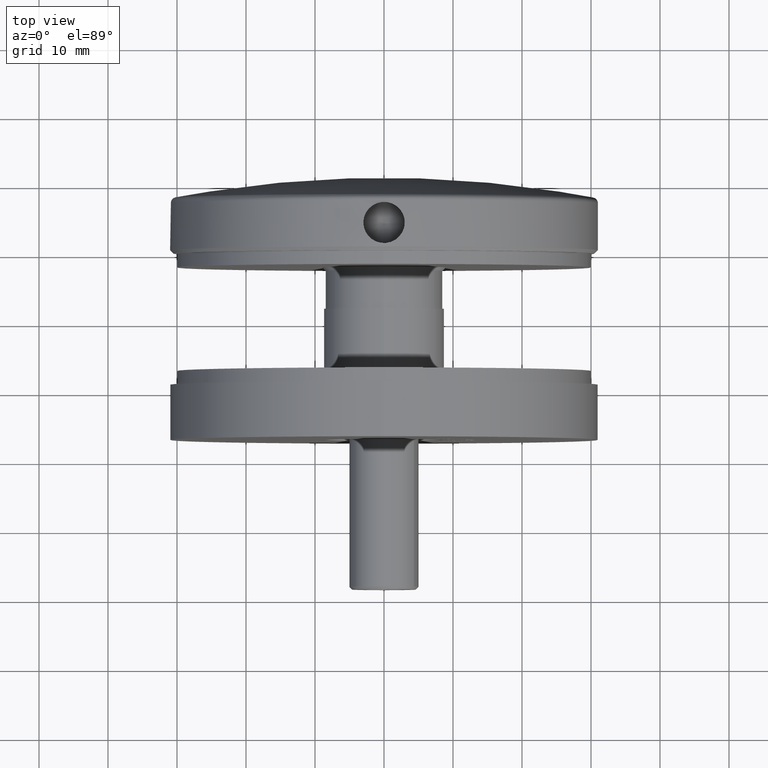
[diagram: clean part render]
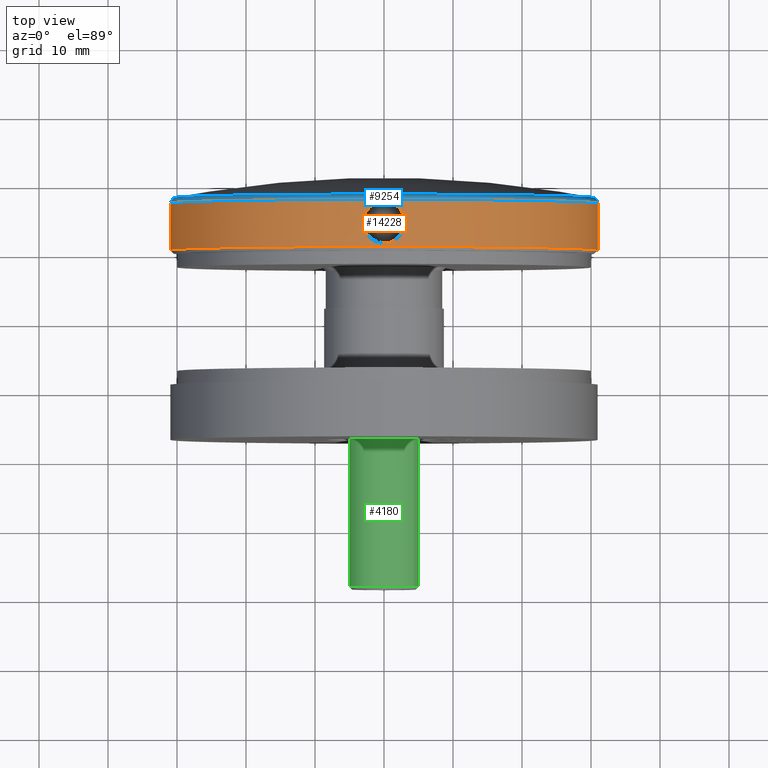
[diagram: same view with three faces highlighted in distinct colors, each labeled with its STEP entity id]
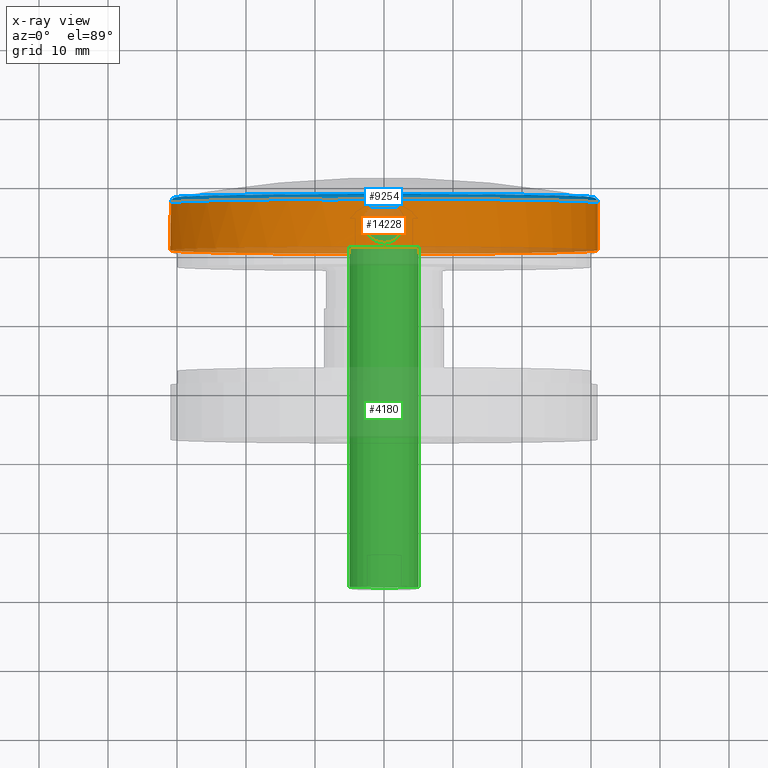
[diagram: x-ray of the same camera — body ghosted, the three highlighted faces saturated]
A machine part, top view with three faces highlighted in distinct colors.
The next image is the same camera in x-ray (body ghosted, the three faces saturated) — at least one of them is partly hidden behind the body in this view.
Their STEP definitions:

[orange] entity #14228 — the highlighted cylindrical surface (bore or boss wall) has radius 31 mm, axis along (0, -1, 0).
#494 = CARTESIAN_POINT ( 'NONE',  ( -2.846538178095149529, 3.027584745880786521, 30.86912599238107546 ) ) ;
#553 = CARTESIAN_POINT ( 'NONE',  ( -2.261514367537706960, 5.975857865030694605, 30.91770897783677086 ) ) ;
#615 = CARTESIAN_POINT ( 'NONE',  ( -2.980228296624380047, 3.599155822630280888, 30.85643742602519168 ) ) ;
#680 = CARTESIAN_POINT ( 'NONE',  ( -2.385543698791896094, 5.824783386775874483, 30.90827170284979530 ) ) ;
#748 = CARTESIAN_POINT ( 'NONE',  ( -2.904456355954323499, 4.771576778846933209, 30.86366175981867954 ) ) ;
#839 = CIRCLE ( 'NONE', #13617, 31.00000000000000000 ) ;
#942 = EDGE_LOOP ( 'NONE', ( #2702 ) ) ;
#1430 = VERTEX_POINT ( 'NONE', #7859 ) ;
#1904 = CARTESIAN_POINT ( 'NONE',  ( 1.503962362389748231, 1.391732910514694499, 30.96393148186933431 ) ) ;
#1970 = CARTESIAN_POINT ( 'NONE',  ( 1.981220569800023146, 6.256201069364929701, 30.93693614101810496 ) ) ;
#2033 = CARTESIAN_POINT ( 'NONE',  ( 2.601833880612198779, 5.501427465894404456, 30.89081715309112042 ) ) ;
#2096 = CARTESIAN_POINT ( 'NONE',  ( 0.1974099069977707510, 0.9951072433798120453, 30.99998962160994154 ) ) ;
#2154 = CARTESIAN_POINT ( 'NONE',  ( -2.604634098319705604, 5.496601543431862247, 30.89058043497889017 ) ) ;
#2172 = DIRECTION ( 'NONE',  ( -9.462128050782584868E-16, 1.000000000000000000, 0.000000000000000000 ) ) ;
#2702 = ORIENTED_EDGE ( 'NONE', *, *, #7222, .T. ) ;
#2768 = CIRCLE ( 'NONE', #4969, 31.00000000000000000 ) ;
#3200 = CARTESIAN_POINT ( 'NONE',  ( 2.999999999999988010, 3.796681264219546659, 30.85449724108302405 ) ) ;
#3256 = CARTESIAN_POINT ( 'NONE',  ( -0.9700885219872114051, 6.840620384819019684, 30.98534991470117461 ) ) ;
#3317 = CARTESIAN_POINT ( 'NONE',  ( -1.980289757258585803, 1.732771998580417527, 30.93700330392404396 ) ) ;
#3380 = CARTESIAN_POINT ( 'NONE',  ( -0.9649123832587978011, 1.147615946055583924, 30.98551266555149297 ) ) ;
#3436 = CARTESIAN_POINT ( 'NONE',  ( 2.920183408707264672, 4.785694947665211529, 30.86252099671270344 ) ) ;
#3496 = CARTESIAN_POINT ( 'NONE',  ( -2.903341461316851113, 3.214575966697185372, 30.86376677732657114 ) ) ;
#3645 = FACE_BOUND ( 'NONE', #942, .T. ) ;
#3851 = FACE_OUTER_BOUND ( 'NONE', #5555, .T. ) ;
#3989 = CARTESIAN_POINT ( 'NONE',  ( -31.00000000000000000, 0.5000000000000487388, 0.000000000000000000 ) ) ;
#4648 = CARTESIAN_POINT ( 'NONE',  ( 0.1953035440208525098, 6.995188153320526681, 31.00001820837758260 ) ) ;
#4692 = CARTESIAN_POINT ( 'NONE',  ( 0.000000000000000000, 0.000000000000000000, 0.000000000000000000 ) ) ;
#4707 = CARTESIAN_POINT ( 'NONE',  ( -2.695893834677197898, 2.664275270611834223, 30.88264683548028700 ) ) ;
#4721 = VERTEX_POINT ( 'NONE', #18110 ) ;
#4768 = CARTESIAN_POINT ( 'NONE',  ( -1.831063936257375513, 6.379456035492904853, 30.94630554586147397 ) ) ;
#4833 = CARTESIAN_POINT ( 'NONE',  ( 2.695904332229930755, 2.664301484450320334, 30.88264588835302149 ) ) ;
#4897 = CARTESIAN_POINT ( 'NONE',  ( -0.3930080526754982650, 1.014389911110829434, 30.99810613423754901 ) ) ;
#4939 = DIRECTION ( 'NONE',  ( 1.000000000000000000, 9.462128050782584868E-16, 0.000000000000000000 ) ) ;
#4969 = AXIS2_PLACEMENT_3D ( 'NONE', #12033, #9228, #4975 ) ;
#4975 = DIRECTION ( 'NONE',  ( 1.000000000000000000, 9.512999706969587101E-16, 0.000000000000000000 ) ) ;
#5555 = EDGE_LOOP ( 'NONE', ( #12512 ) ) ;
#6094 = CARTESIAN_POINT ( 'NONE',  ( 2.258079582552448006, 5.979777524347637652, 30.91796127396645844 ) ) ;
#6137 = CARTESIAN_POINT ( 'NONE',  ( -4.731064025392031005E-16, 0.5000000000000780487, 0.000000000000000000 ) ) ;
#6162 = CARTESIAN_POINT ( 'NONE',  ( -2.981152521874304018, 4.384445578239338559, 30.85634802742313809 ) ) ;
#6228 = CARTESIAN_POINT ( 'NONE',  ( 2.904257423815808981, 3.218131756484034156, 30.86368021410936180 ) ) ;
#6288 = CARTESIAN_POINT ( 'NONE',  ( -0.3959407590565922064, 6.975179280106564406, 30.99806468703798856 ) ) ;
#6346 = CARTESIAN_POINT ( 'NONE',  ( 2.259414481697213262, 2.011746187747888825, 30.91786319812169026 ) ) ;
#7178 = CYLINDRICAL_SURFACE ( 'NONE', #8812, 31.00000000000000000 ) ;
#7222 = EDGE_CURVE ( 'NONE', #1430, #1430, #15630, .T. ) ;
#7523 = CARTESIAN_POINT ( 'NONE',  ( -2.260494573392788809, 2.012731769721386232, 30.91779237321729212 ) ) ;
#7586 = CARTESIAN_POINT ( 'NONE',  ( 2.386051734629841992, 2.166017370580881618, 30.90823001445294338 ) ) ;
#7649 = CARTESIAN_POINT ( 'NONE',  ( 2.846523665451968110, 3.027548848858923947, 30.86912729987627202 ) ) ;
#7712 = CARTESIAN_POINT ( 'NONE',  ( -1.328262572828704746, 1.297895924209522711, 30.97206434179098977 ) ) ;
#7774 = CARTESIAN_POINT ( 'NONE',  ( -0.7778510304038741552, 1.090961500607241730, 30.99083714605694695 ) ) ;
#7859 = CARTESIAN_POINT ( 'NONE',  ( 2.999999999999988010, 3.995000000000078266, 30.85449724108302405 ) ) ;
#8812 = AXIS2_PLACEMENT_3D ( 'NONE', #4692, #16024, #4939 ) ;
#8847 = CARTESIAN_POINT ( 'NONE',  ( 2.999999999999987121, 3.995000000000077378, 30.85449724108302050 ) ) ;
#9022 = CARTESIAN_POINT ( 'NONE',  ( -2.846919185123863549, 4.961039810018225360, 30.86908929089210929 ) ) ;
#9087 = CARTESIAN_POINT ( 'NONE',  ( 0.7742601464354584850, 6.899952889968766989, 30.99092323898280910 ) ) ;
#9148 = CARTESIAN_POINT ( 'NONE',  ( -3.000071608172204307, 4.189733410541803593, 30.85449027858092563 ) ) ;
#9214 = CARTESIAN_POINT ( 'NONE',  ( -2.384587948353279252, 2.164178304934254005, 30.90834228286718854 ) ) ;
#9228 = DIRECTION ( 'NONE',  ( 9.462128050782584868E-16, -1.000000000000000000, -0.000000000000000000 ) ) ;
#10371 = CARTESIAN_POINT ( 'NONE',  ( -1.985212305881718375, 6.252692896877088735, 30.93667900362551393 ) ) ;
#10432 = CARTESIAN_POINT ( 'NONE',  ( -0.2010417282441117615, 6.994809102782468813, 30.99998152608405988 ) ) ;
#10492 = CARTESIAN_POINT ( 'NONE',  ( 2.695221638581256851, 5.326896290674170586, 30.88270468518227574 ) ) ;
#10514 = ORIENTED_EDGE ( 'NONE', *, *, #14324, .T. ) ;
#10551 = CARTESIAN_POINT ( 'NONE',  ( -0.1941368268569523825, 0.9948936493749005461, 31.00001029199446023 ) ) ;
#10615 = CARTESIAN_POINT ( 'NONE',  ( -2.999927988446679183, 3.798066459239676007, 30.85450424280611514 ) ) ;
#11359 = FACE_OUTER_BOUND ( 'NONE', #11403, .T. ) ;
#11403 = EDGE_LOOP ( 'NONE', ( #10514 ) ) ;
#11573 = EDGE_CURVE ( 'NONE', #11601, #11601, #839, .T. ) ;
#11601 = VERTEX_POINT ( 'NONE', #3989 ) ;
#11711 = CARTESIAN_POINT ( 'NONE',  ( 2.980528557593422612, 3.601699899640289360, 30.85640803884934158 ) ) ;
#11774 = CARTESIAN_POINT ( 'NONE',  ( 2.603751192248761726, 2.492036238657047154, 30.89065239252034800 ) ) ;
#11831 = CARTESIAN_POINT ( 'NONE',  ( 2.382329192492628867, 5.828949527904200956, 30.90852037135729091 ) ) ;
#11897 = CARTESIAN_POINT ( 'NONE',  ( 1.500676963369823591, 6.600065862658972549, 30.96408621054484200 ) ) ;
#11954 = CARTESIAN_POINT ( 'NONE',  ( -1.828777794477537411, 1.608841292704297432, 30.94643841818598062 ) ) ;
#12033 = CARTESIAN_POINT ( 'NONE',  ( -6.945015549185222062E-15, 7.339802961777524892, 0.000000000000000000 ) ) ;
#12512 = ORIENTED_EDGE ( 'NONE', *, *, #11573, .T. ) ;
#13128 = CARTESIAN_POINT ( 'NONE',  ( 1.328318775677403751, 6.692084375987839451, 30.97206253291425782 ) ) ;
#13191 = CARTESIAN_POINT ( 'NONE',  ( -2.601894156223162113, 2.488907518654008832, 30.89080816615388159 ) ) ;
#13247 = DIRECTION ( 'NONE',  ( -1.000000000000000000, -9.478025443341022696E-16, 0.000000000000000000 ) ) ;
#13255 = CARTESIAN_POINT ( 'NONE',  ( -2.697553438560007066, 5.322172636577285232, 30.88250035119904169 ) ) ;
#13321 = CARTESIAN_POINT ( 'NONE',  ( 2.999999999999986233, 4.391637471561141481, 30.85449724108301695 ) ) ;
#13378 = CARTESIAN_POINT ( 'NONE',  ( -0.7794519394505222687, 6.898565446196381679, 30.99079279561205169 ) ) ;
#13617 = AXIS2_PLACEMENT_3D ( 'NONE', #6137, #2172, #13247 ) ;
#14228 = ADVANCED_FACE ( 'NONE', ( #3645, #11359, #3851 ), #7178, .T. ) ;
#14324 = EDGE_CURVE ( 'NONE', #4721, #4721, #2768, .T. ) ;
#14553 = CARTESIAN_POINT ( 'NONE',  ( 1.826802056488278092, 6.382717266258750577, 30.94655813574188130 ) ) ;
#14616 = CARTESIAN_POINT ( 'NONE',  ( 1.329518521666700481, 1.298604718677645931, 30.97200337599516473 ) ) ;
#14678 = CARTESIAN_POINT ( 'NONE',  ( -1.333051690100677922, 6.689735665424087152, 30.97185745589830930 ) ) ;
#14740 = CARTESIAN_POINT ( 'NONE',  ( 0.9647638230672049842, 6.842441951421593949, 30.98551789269092538 ) ) ;
#14799 = CARTESIAN_POINT ( 'NONE',  ( 1.982802387273574496, 1.735189349317561192, 30.93683424707337792 ) ) ;
#15630 = B_SPLINE_CURVE_WITH_KNOTS ( 'NONE', 3,
 ( #8847, #3200, #11711, #6228, #7649, #4833, #11774, #7586, #6346, #14799, #16233, #1904, #14616, #17596, #16170, #17473, #2096, #10551, #4897, #7774, #3380, #7712, #17658, #11954, #3317, #7523, #9214, #13191, #4707, #494, #3496, #615, #10615, #9148, #6162, #748, #9022, #13255, #2154, #680, #553, #10371, #4768, #17539, #14678, #3256, #13378, #6288, #10432, #4648, #16109, #9087, #14740, #13128, #11897, #14553, #1970, #6094, #11831, #2033, #10492, #3436, #13321, #15983 ),
 .UNSPECIFIED., .T., .F.,
 ( 4, 2, 2, 2, 2, 2, 2, 2, 2, 2, 2, 2, 2, 2, 2, 2, 2, 2, 2, 2, 2, 2, 2, 2, 2, 2, 2, 2, 2, 2, 2, 4 ),
 ( 0.000000000000000000, 0.0005864847604644489714, 0.001172969520928897943, 0.001759454281393347131, 0.002345939041857795886, 0.002932423802322244640, 0.003518908562786694262, 0.004105393323251143450, 0.004691878083715591771, 0.005278362844180040959, 0.005864847604644489280, 0.006451332365108938469, 0.007037817125573385922, 0.007624301886037832508, 0.008210786646502279962, 0.008797271406966726548, 0.009383756167431173134, 0.009970240927895623190, 0.01055672568836007151, 0.01114321044882451983, 0.01172969520928896815, 0.01231617996975341994, 0.01290266473021786826, 0.01348914949068231658, 0.01407563425114676664, 0.01466211901161121496, 0.01524860377207566328, 0.01583508853254011334, 0.01642157329300455992, 0.01700805805346901345, 0.01759454281393346003, 0.01876751233486236015 ),
 .UNSPECIFIED. ) ;
#15983 = CARTESIAN_POINT ( 'NONE',  ( 2.999999999999987121, 3.995000000000077378, 30.85449724108302050 ) ) ;
#16024 = DIRECTION ( 'NONE',  ( 9.462128050782584868E-16, -1.000000000000000000, -0.000000000000000000 ) ) ;
#16109 = CARTESIAN_POINT ( 'NONE',  ( 0.3906510383039126233, 6.975876017812251639, 30.99813210090498572 ) ) ;
#16170 = CARTESIAN_POINT ( 'NONE',  ( 0.7794306662139619535, 1.091299960909403621, 30.99080510245211428 ) ) ;
#16233 = CARTESIAN_POINT ( 'NONE',  ( 1.831849965568127514, 1.611047812910181953, 30.94626441600070521 ) ) ;
#17473 = CARTESIAN_POINT ( 'NONE',  ( 0.3921340514815034872, 1.014191893778104481, 30.99812484566243143 ) ) ;
#17539 = CARTESIAN_POINT ( 'NONE',  ( -1.505211274610400274, 6.597453600479103564, 30.96386540946178556 ) ) ;
#17596 = CARTESIAN_POINT ( 'NONE',  ( 0.9685874176319235751, 1.148949152422366504, 30.98539092921882343 ) ) ;
#17658 = CARTESIAN_POINT ( 'NONE',  ( -1.503800939461878095, 1.391778086207254628, 30.96393162579044400 ) ) ;
#18110 = CARTESIAN_POINT ( 'NONE',  ( 30.99999999999999289, 7.339802961777554202, 0.000000000000000000 ) ) ;

[blue] entity #9254 — the highlighted toroidal blend (fillet) surface has major radius 30.2 mm and minor (blend) radius 0.8 mm.
#1125 = EDGE_LOOP ( 'NONE', ( #11699 ) ) ;
#1128 = CARTESIAN_POINT ( 'NONE',  ( 30.35018648984651790, 8.125579022921964878, 0.000000000000000000 ) ) ;
#2401 = AXIS2_PLACEMENT_3D ( 'NONE', #16124, #17424, #4844 ) ;
#2768 = CIRCLE ( 'NONE', #4969, 31.00000000000000000 ) ;
#2930 = AXIS2_PLACEMENT_3D ( 'NONE', #5937, #14457, #8990 ) ;
#3289 = TOROIDAL_SURFACE ( 'NONE', #2930, 30.20000000000000284, 0.8000000000000000444 ) ;
#4721 = VERTEX_POINT ( 'NONE', #18110 ) ;
#4844 = DIRECTION ( 'NONE',  ( 1.000000000000000000, 9.716678051211115179E-16, 0.000000000000000000 ) ) ;
#4969 = AXIS2_PLACEMENT_3D ( 'NONE', #12033, #9228, #4975 ) ;
#4975 = DIRECTION ( 'NONE',  ( 1.000000000000000000, 9.512999706969587101E-16, 0.000000000000000000 ) ) ;
#5937 = CARTESIAN_POINT ( 'NONE',  ( -6.945015549185220484E-15, 7.339802961777524892, 0.000000000000000000 ) ) ;
#8311 = VERTEX_POINT ( 'NONE', #1128 ) ;
#8990 = DIRECTION ( 'NONE',  ( 1.000000000000000000, 9.462128050782584868E-16, 0.000000000000000000 ) ) ;
#9228 = DIRECTION ( 'NONE',  ( 9.462128050782584868E-16, -1.000000000000000000, -0.000000000000000000 ) ) ;
#9254 = ADVANCED_FACE ( 'NONE', ( #11167, #10751 ), #3289, .T. ) ;
#10488 = CIRCLE ( 'NONE', #2401, 30.35018648984666711 ) ;
#10613 = ORIENTED_EDGE ( 'NONE', *, *, #14324, .F. ) ;
#10751 = FACE_OUTER_BOUND ( 'NONE', #16557, .T. ) ;
#11167 = FACE_OUTER_BOUND ( 'NONE', #1125, .T. ) ;
#11699 = ORIENTED_EDGE ( 'NONE', *, *, #15862, .F. ) ;
#12033 = CARTESIAN_POINT ( 'NONE',  ( -6.945015549185222062E-15, 7.339802961777524892, 0.000000000000000000 ) ) ;
#14324 = EDGE_CURVE ( 'NONE', #4721, #4721, #2768, .T. ) ;
#14457 = DIRECTION ( 'NONE',  ( 9.462128050782584868E-16, -1.000000000000000000, -0.000000000000000000 ) ) ;
#15862 = EDGE_CURVE ( 'NONE', #8311, #8311, #10488, .T. ) ;
#16124 = CARTESIAN_POINT ( 'NONE',  ( -1.502512562186208390E-13, 8.125579022921936456, 0.000000000000000000 ) ) ;
#16557 = EDGE_LOOP ( 'NONE', ( #10613 ) ) ;
#17424 = DIRECTION ( 'NONE',  ( -9.462128050782584868E-16, 1.000000000000000000, 0.000000000000000000 ) ) ;
#18110 = CARTESIAN_POINT ( 'NONE',  ( 30.99999999999999289, 7.339802961777554202, 0.000000000000000000 ) ) ;

[green] entity #4180 — the highlighted cylindrical surface (bore or boss wall) has radius 5 mm, axis along (0, -1, 0).
#120 = VERTEX_POINT ( 'NONE', #10992 ) ;
#293 = CARTESIAN_POINT ( 'NONE',  ( 0.000000000000000000, 0.000000000000000000, -0.4000000000000045186 ) ) ;
#424 = CARTESIAN_POINT ( 'NONE',  ( 0.000000000000000000, 0.000000000000000000, 0.000000000000000000 ) ) ;
#1679 = EDGE_LOOP ( 'NONE', ( #11740 ) ) ;
#3649 = DIRECTION ( 'NONE',  ( 0.000000000000000000, 0.000000000000000000, 1.000000000000000000 ) ) ;
#3853 = VERTEX_POINT ( 'NONE', #15193 ) ;
#4180 = ADVANCED_FACE ( 'NONE', ( #9328, #8419 ), #6654, .T. ) ;
#4457 = DIRECTION ( 'NONE',  ( 0.000000000000000000, 0.000000000000000000, 1.000000000000000000 ) ) ;
#6049 = AXIS2_PLACEMENT_3D ( 'NONE', #10588, #3649, #7933 ) ;
#6654 = CYLINDRICAL_SURFACE ( 'NONE', #17101, 4.999999999999988454 ) ;
#7919 = CIRCLE ( 'NONE', #6049, 4.999999999999988454 ) ;
#7933 = DIRECTION ( 'NONE',  ( 1.000000000000000000, 1.110223024625159006E-16, 0.000000000000000000 ) ) ;
#8419 = FACE_OUTER_BOUND ( 'NONE', #11191, .T. ) ;
#9328 = FACE_OUTER_BOUND ( 'NONE', #1679, .T. ) ;
#10588 = CARTESIAN_POINT ( 'NONE',  ( 0.000000000000000000, 0.000000000000000000, -53.74999999999961631 ) ) ;
#10916 = EDGE_CURVE ( 'NONE', #3853, #3853, #7919, .T. ) ;
#10992 = CARTESIAN_POINT ( 'NONE',  ( -4.999999999999988454, -5.551115123125782702E-16, -0.4000000000000045186 ) ) ;
#11191 = EDGE_LOOP ( 'NONE', ( #13018 ) ) ;
#11628 = DIRECTION ( 'NONE',  ( -1.000000000000000000, -1.110223024625159006E-16, 0.000000000000000000 ) ) ;
#11740 = ORIENTED_EDGE ( 'NONE', *, *, #17909, .T. ) ;
#12865 = DIRECTION ( 'NONE',  ( 0.000000000000000000, 0.000000000000000000, -1.000000000000000000 ) ) ;
#13018 = ORIENTED_EDGE ( 'NONE', *, *, #10916, .T. ) ;
#13158 = CIRCLE ( 'NONE', #17083, 4.999999999999988454 ) ;
#15193 = CARTESIAN_POINT ( 'NONE',  ( 4.999999999999988454, 5.551115123125782702E-16, -53.74999999999961631 ) ) ;
#17083 = AXIS2_PLACEMENT_3D ( 'NONE', #293, #12865, #11628 ) ;
#17101 = AXIS2_PLACEMENT_3D ( 'NONE', #424, #4457, #17268 ) ;
#17268 = DIRECTION ( 'NONE',  ( 1.000000000000000000, 1.110223024625159006E-16, 0.000000000000000000 ) ) ;
#17909 = EDGE_CURVE ( 'NONE', #120, #120, #13158, .T. ) ;